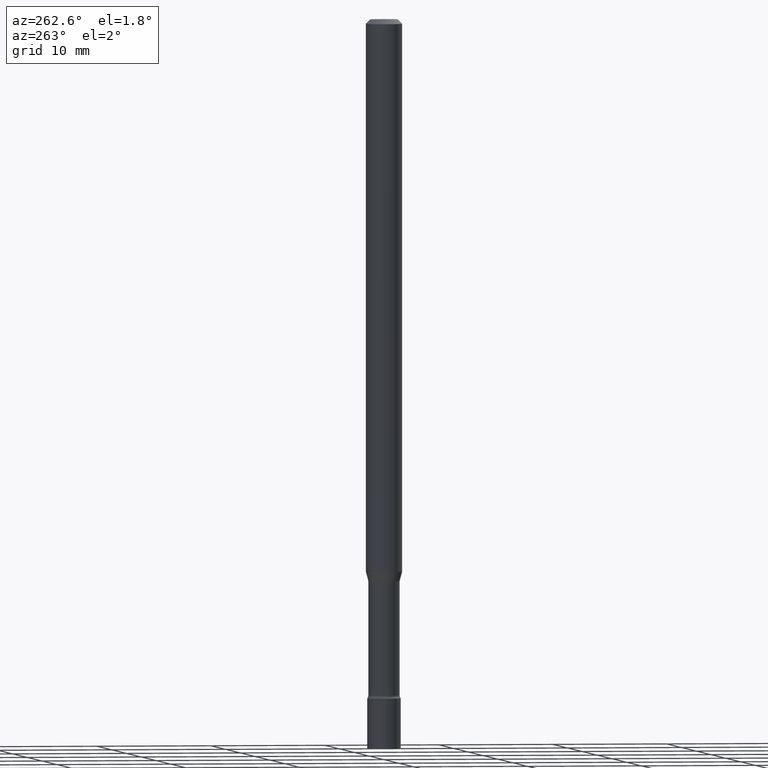
[diagram: clean part render]
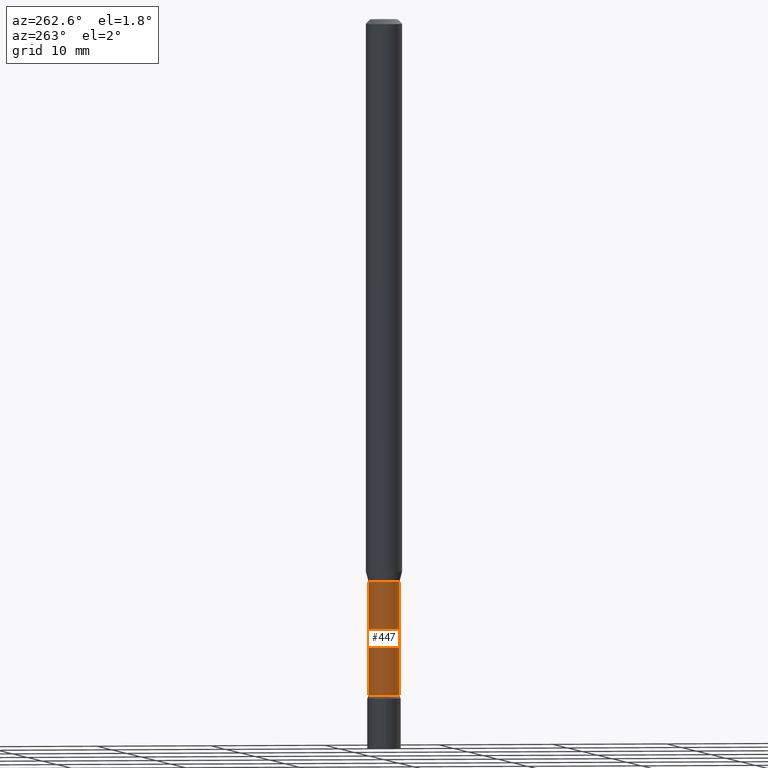
[diagram: same view with one face highlighted and labeled with its STEP entity id]
A machine part, auxiliary view. The second image highlights one B-rep face of the part: STEP entity #447.
In plain terms, the highlighted cylindrical surface (edge-blend (fillet) strip) has radius 1.3729 mm, axis along (-0, 0, 1).
Its self-contained STEP definition (entity closure, byte-faithful):
#8 = AXIS2_PLACEMENT_3D ( 'NONE', #129, #52, #92 ) ;
#19 = DIRECTION ( 'NONE',  ( -2.445499533881974174E-29, 3.491437335032362109E-15, 1.000000000000000000 ) ) ;
#25 = CARTESIAN_POINT ( 'NONE',  ( 3.840483486783343535E-16, 0.05405000000000003552, -1.887121879584992843E-16 ) ) ;
#39 = EDGE_CURVE ( 'NONE', #128, #350, #141, .T. ) ;
#48 = FACE_OUTER_BOUND ( 'NONE', #514, .T. ) ;
#52 = DIRECTION ( 'NONE',  ( -2.445499533881974174E-29, 3.491437335032362109E-15, 1.000000000000000000 ) ) ;
#67 = CARTESIAN_POINT ( 'NONE',  ( 5.667272374969495812E-29, -8.091159324964724152E-15, -2.317429341715430802 ) ) ;
#72 = DIRECTION ( 'NONE',  ( -6.982962677686265922E-15, -1.000000000000000000, 5.054297860618433521E-15 ) ) ;
#77 = CIRCLE ( 'NONE', #369, 0.05405000000000007021 ) ;
#92 = DIRECTION ( 'NONE',  ( -6.982962677686265922E-15, -1.000000000000000000, 3.491437335032361714E-15 ) ) ;
#101 = DIRECTION ( 'NONE',  ( -2.445499533881974174E-29, 3.491437335032362109E-15, 1.000000000000000000 ) ) ;
#108 = CARTESIAN_POINT ( 'NONE',  ( -3.774291327288865224E-16, -0.05405000000000816096, -2.317429341715430358 ) ) ;
#128 = VERTEX_POINT ( 'NONE', #108 ) ;
#129 = CARTESIAN_POINT ( 'NONE',  ( 0.000000000000000000, 0.000000000000000000, 0.000000000000000000 ) ) ;
#141 = LINE ( 'NONE', #252, #396 ) ;
#152 = EDGE_CURVE ( 'NONE', #339, #327, #153, .T. ) ;
#153 = LINE ( 'NONE', #25, #246 ) ;
#169 = DIRECTION ( 'NONE',  ( -2.445499533881974174E-29, 3.491437335032362503E-15, 1.000000000000000000 ) ) ;
#172 = ORIENTED_EDGE ( 'NONE', *, *, #243, .T. ) ;
#189 = AXIS2_PLACEMENT_3D ( 'NONE', #304, #19, #72 ) ;
#228 = EDGE_CURVE ( 'NONE', #327, #350, #444, .T. ) ;
#234 = ORIENTED_EDGE ( 'NONE', *, *, #228, .F. ) ;
#243 = EDGE_CURVE ( 'NONE', #339, #128, #77, .T. ) ;
#246 = VECTOR ( 'NONE', #271, 39.37007874015748143 ) ;
#252 = CARTESIAN_POINT ( 'NONE',  ( -3.774291327289429259E-16, -0.05405000000000003552, 1.887121879584992843E-16 ) ) ;
#263 = DIRECTION ( 'NONE',  ( -6.982962677686265922E-15, -1.000000000000000000, 5.054297860618426422E-15 ) ) ;
#271 = DIRECTION ( 'NONE',  ( -2.445499533881974174E-29, 3.491437335032362503E-15, 1.000000000000000000 ) ) ;
#287 = CYLINDRICAL_SURFACE ( 'NONE', #8, 0.05405000000000003552 ) ;
#292 = ORIENTED_EDGE ( 'NONE', *, *, #39, .T. ) ;
#304 = CARTESIAN_POINT ( 'NONE',  ( 4.712415944545066253E-29, -6.727911716617200935E-15, -1.926974787463811012 ) ) ;
#327 = VERTEX_POINT ( 'NONE', #364 ) ;
#339 = VERTEX_POINT ( 'NONE', #439 ) ;
#350 = VERTEX_POINT ( 'NONE', #436 ) ;
#358 = ORIENTED_EDGE ( 'NONE', *, *, #152, .F. ) ;
#364 = CARTESIAN_POINT ( 'NONE',  ( 3.840483486783908557E-16, 0.05404999999999326316, -1.926974787463811456 ) ) ;
#369 = AXIS2_PLACEMENT_3D ( 'NONE', #67, #101, #263 ) ;
#396 = VECTOR ( 'NONE', #169, 39.37007874015748143 ) ;
#436 = CARTESIAN_POINT ( 'NONE',  ( -3.774291327288955450E-16, -0.05405000000000673155, -1.926974787463810790 ) ) ;
#439 = CARTESIAN_POINT ( 'NONE',  ( 3.963052108702527624E-16, 0.05404999999999197946, -2.317429341715430802 ) ) ;
#444 = CIRCLE ( 'NONE', #189, 0.05405000000000000082 ) ;
#447 = ADVANCED_FACE ( 'NONE', ( #48 ), #287, .T. ) ;
#514 = EDGE_LOOP ( 'NONE', ( #358, #172, #292, #234 ) ) ;